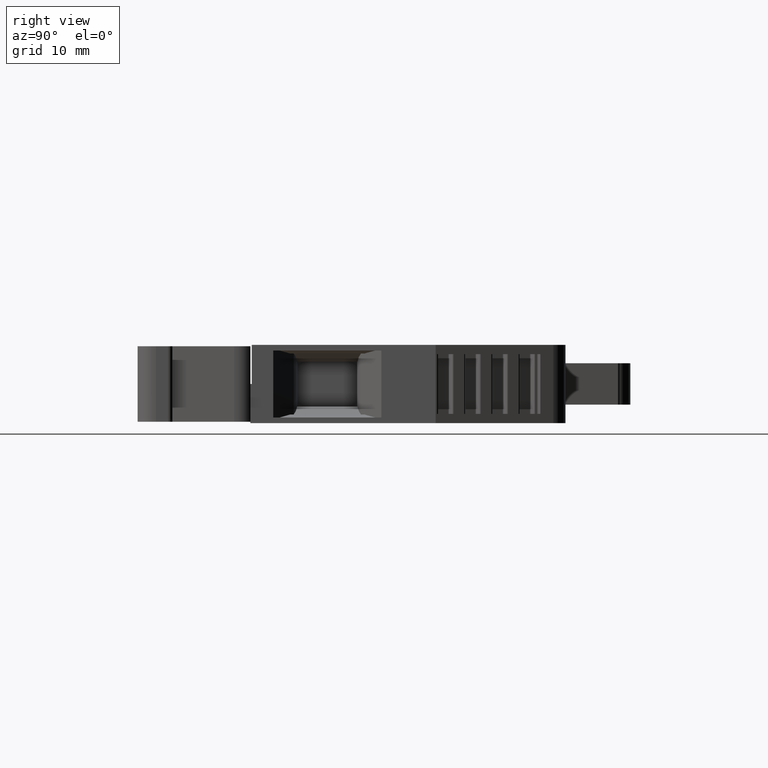
[diagram: clean part render]
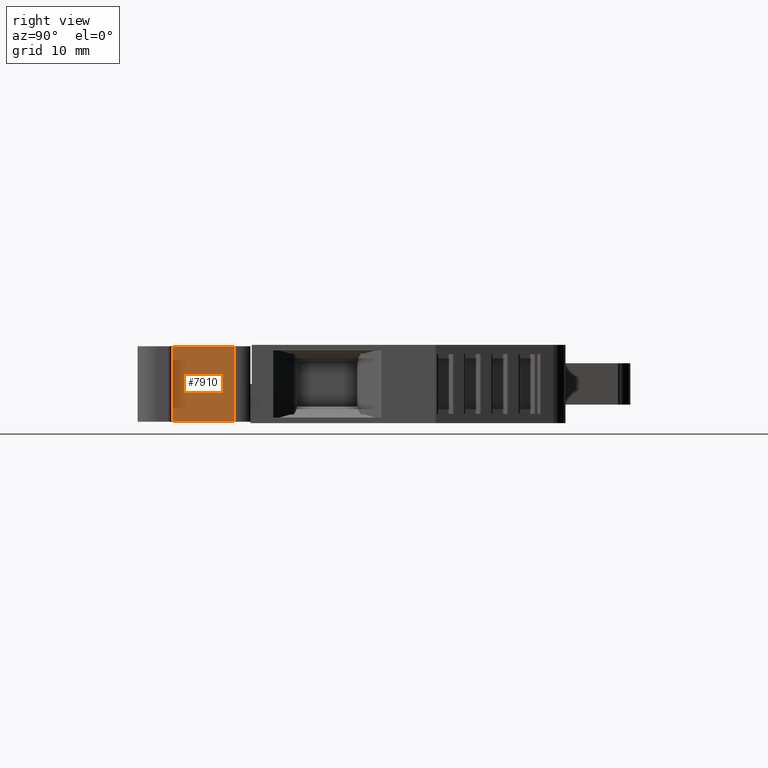
[diagram: same view with one face highlighted and labeled with its STEP entity id]
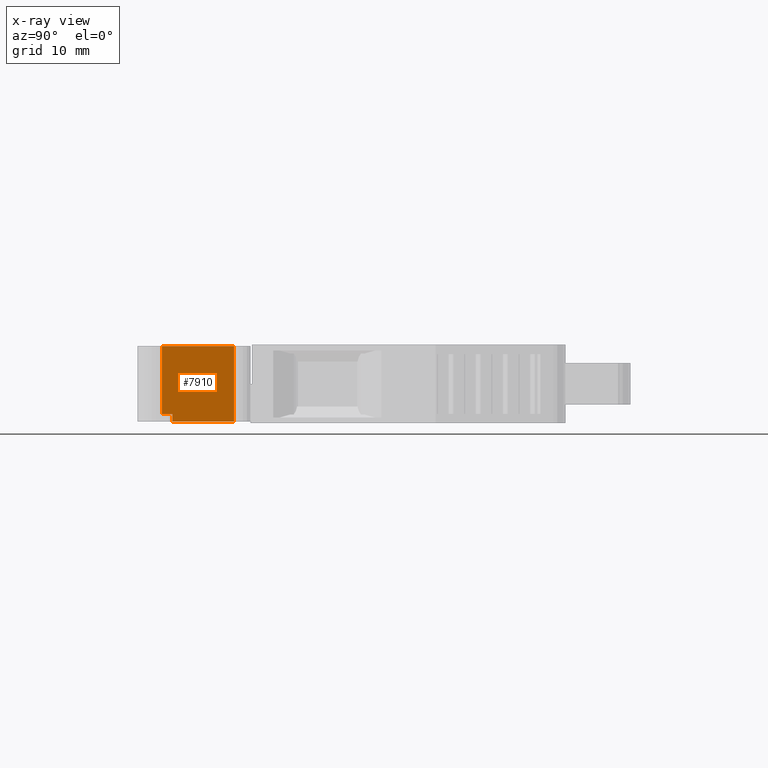
[diagram: x-ray of the same camera — body ghosted, the highlighted face saturated]
A machine part, right view. The second image highlights one B-rep face of the part: STEP entity #7910.
The next image is the same camera in x-ray: the body ghosted, the highlighted face saturated — about 0% of this face is hidden behind the body in this view.
In plain terms, the highlighted planar face has unit normal (0.9848, -0.1736, 0).
Its self-contained STEP definition (entity closure, byte-faithful):
#249 = EDGE_CURVE ( 'NONE', #11873, #14823, #12984, .T. ) ;
#271 = EDGE_CURVE ( 'NONE', #8791, #11865, #13009, .T. ) ;
#639 = EDGE_CURVE ( 'NONE', #11865, #11873, #4169, .T. ) ;
#788 = EDGE_CURVE ( 'NONE', #8711, #8718, #2711, .T. ) ;
#2710 = CARTESIAN_POINT ( 'NONE',  ( 582.5850828783578700, 253.0595134941732700, -0.006012645352508764900 ) ) ;
#2711 = LINE ( 'NONE', #2710, #11012 ) ;
#2726 = DIRECTION ( 'NONE',  ( -0.1736480269953713000, -0.9848077795796572600, 0.0000000000000000000 ) ) ;
#4131 = CARTESIAN_POINT ( 'NONE',  ( 581.2003938712946400, 245.2065448768525800, 8.178043958385492500 ) ) ;
#4169 = LINE ( 'NONE', #4131, #10748 ) ;
#4193 = DIRECTION ( 'NONE',  ( 0.0000000000000000000, -0.0000000000000000000, -1.000000000000000000 ) ) ;
#7074 = CARTESIAN_POINT ( 'NONE',  ( 581.4042068044467400, 246.3624264933622200, -0.006012645352509248000 ) ) ;
#7091 = CARTESIAN_POINT ( 'NONE',  ( 582.5850828783578700, 253.0595134941733900, -0.006012645352508963500 ) ) ;
#7189 = CARTESIAN_POINT ( 'NONE',  ( 582.5850828783553700, 253.0595134941604600, 8.193043958385491300 ) ) ;
#7207 = CARTESIAN_POINT ( 'NONE',  ( 581.2003944690078500, 245.2065447166945100, 8.193043958385491300 ) ) ;
#7236 = CARTESIAN_POINT ( 'NONE',  ( 581.2003944760007200, 245.2065447427917500, 0.8059684867194908400 ) ) ;
#7910 = ADVANCED_FACE ( 'NONE', ( #9000 ), #9003, .T. ) ;
#7979 = EDGE_CURVE ( 'NONE', #8791, #8711, #9244, .T. ) ;
#7982 = EDGE_CURVE ( 'NONE', #8718, #14823, #9328, .T. ) ;
#8711 = VERTEX_POINT ( 'NONE', #7091 ) ;
#8718 = VERTEX_POINT ( 'NONE', #7074 ) ;
#8791 = VERTEX_POINT ( 'NONE', #7189 ) ;
#8987 = DIRECTION ( 'NONE',  ( 0.9848077795796597000, -0.1736480269953574500, 0.0000000000000000000 ) ) ;
#9000 = FACE_OUTER_BOUND ( 'NONE', #12177, .T. ) ;
#9003 = PLANE ( 'NONE',  #10062 ) ;
#9004 = DIRECTION ( 'NONE',  ( 0.1736480269953574500, 0.9848077795796597000, 0.0000000000000000000 ) ) ;
#9009 = CARTESIAN_POINT ( 'NONE',  ( 579.6288444992044300, 236.2938375204411400, 8.178043958385492500 ) ) ;
#9244 = LINE ( 'NONE', #9246, #10096 ) ;
#9246 = CARTESIAN_POINT ( 'NONE',  ( 582.5850828783563900, 253.0595134941656000, 8.178043958385492500 ) ) ;
#9281 = DIRECTION ( 'NONE',  ( 0.0000000000000000000, 0.0000000000000000000, -1.000000000000000000 ) ) ;
#9309 = CARTESIAN_POINT ( 'NONE',  ( 581.4042068044467400, 246.3624264933622200, 8.178043958385492500 ) ) ;
#9328 = LINE ( 'NONE', #9309, #10081 ) ;
#9331 = DIRECTION ( 'NONE',  ( 0.0000000000000000000, 0.0000000000000000000, 1.000000000000000000 ) ) ;
#10062 = AXIS2_PLACEMENT_3D ( 'NONE', #9009, #8987, #9004 ) ;
#10081 = VECTOR ( 'NONE', #9331, 1000.000000000000000 ) ;
#10096 = VECTOR ( 'NONE', #9281, 1000.000000000000000 ) ;
#10240 = VECTOR ( 'NONE', #12986, 1000.000000000000000 ) ;
#10326 = VECTOR ( 'NONE', #13026, 1000.000000000000000 ) ;
#10748 = VECTOR ( 'NONE', #4193, 1000.000000000000000 ) ;
#11012 = VECTOR ( 'NONE', #2726, 1000.000000000000100 ) ;
#11865 = VERTEX_POINT ( 'NONE', #7207 ) ;
#11873 = VERTEX_POINT ( 'NONE', #7236 ) ;
#12177 = EDGE_LOOP ( 'NONE', ( #13920, #13921, #13984, #13917, #13978, #13975 ) ) ;
#12659 = CARTESIAN_POINT ( 'NONE',  ( 581.4042068044467400, 246.3624264933622200, 0.8059684867194908400 ) ) ;
#12984 = LINE ( 'NONE', #12988, #10240 ) ;
#12986 = DIRECTION ( 'NONE',  ( 0.1736480269953574500, 0.9848077795796597000, 0.0000000000000000000 ) ) ;
#12988 = CARTESIAN_POINT ( 'NONE',  ( 579.6288444992044300, 236.2938375204411400, 0.8059684867194908400 ) ) ;
#13009 = LINE ( 'NONE', #13034, #10326 ) ;
#13026 = DIRECTION ( 'NONE',  ( -0.1736480269953574500, -0.9848077795796597000, -0.0000000000000000000 ) ) ;
#13034 = CARTESIAN_POINT ( 'NONE',  ( 579.6288444992044300, 236.2938375204411400, 8.193043958385491300 ) ) ;
#13917 = ORIENTED_EDGE ( 'NONE', *, *, #271, .T. ) ;
#13920 = ORIENTED_EDGE ( 'NONE', *, *, #7982, .F. ) ;
#13921 = ORIENTED_EDGE ( 'NONE', *, *, #788, .F. ) ;
#13975 = ORIENTED_EDGE ( 'NONE', *, *, #249, .T. ) ;
#13978 = ORIENTED_EDGE ( 'NONE', *, *, #639, .T. ) ;
#13984 = ORIENTED_EDGE ( 'NONE', *, *, #7979, .F. ) ;
#14823 = VERTEX_POINT ( 'NONE', #12659 ) ;